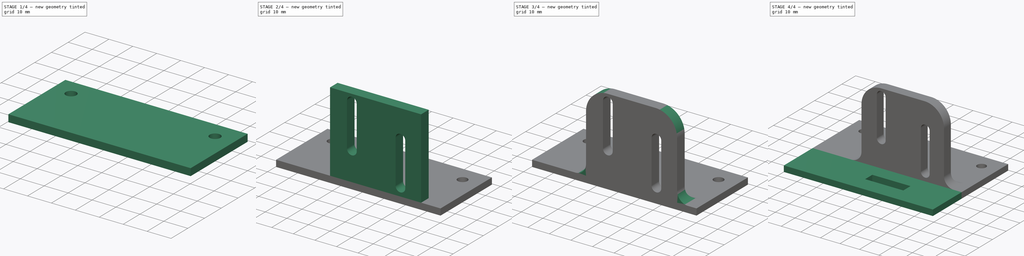
[diagram: build sequence overview — one tinted view per stage of 4, left to right]
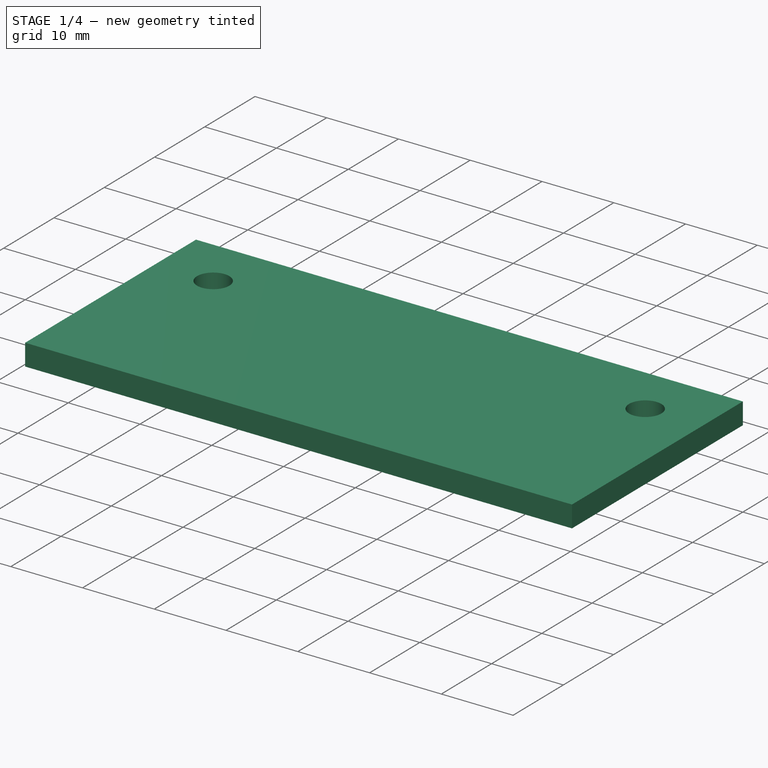
[diagram: stage 1 of 4 — iso view after this stage's code; geometry added in this stage tinted green]
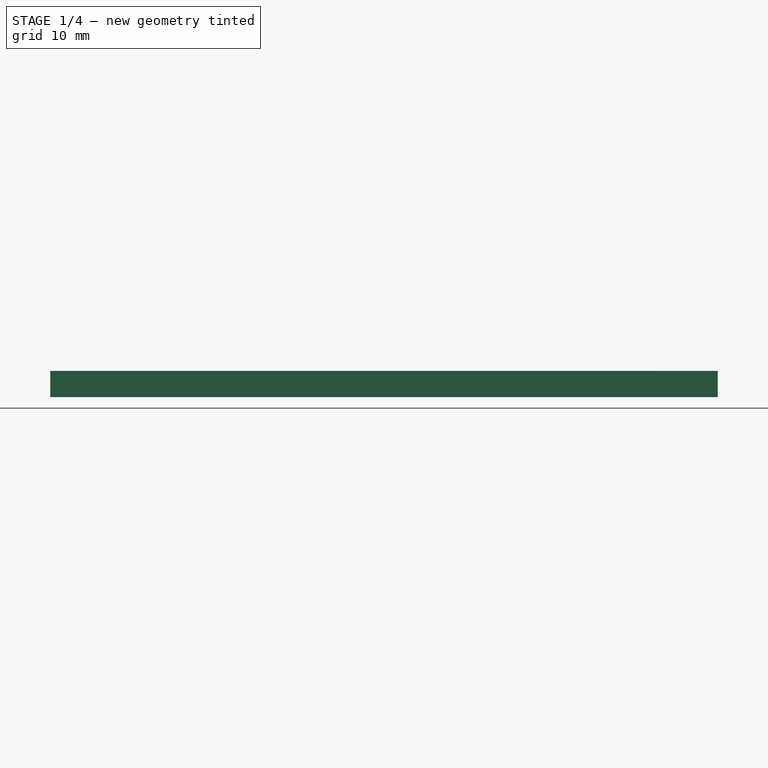
[diagram: stage 1 of 4 — front view after this stage's code; geometry added in this stage tinted green]
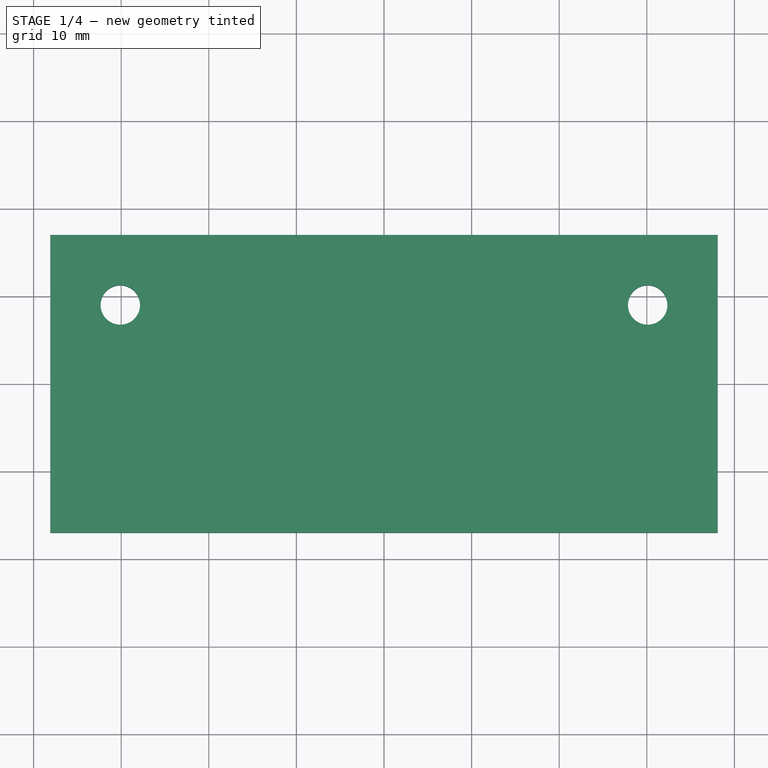
[diagram: stage 1 of 4 — top view after this stage's code; geometry added in this stage tinted green]
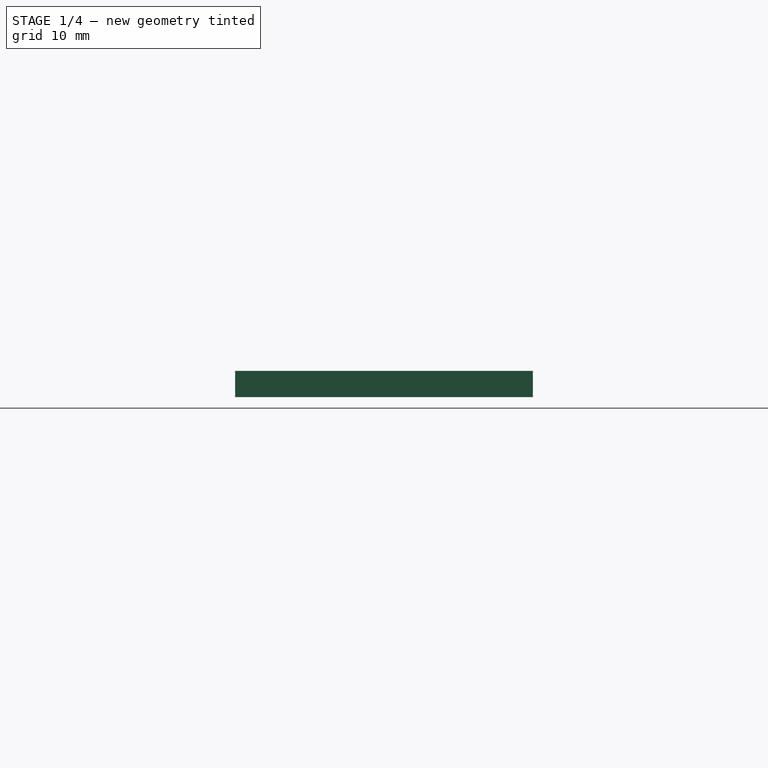
[diagram: stage 1 of 4 — right view after this stage's code; geometry added in this stage tinted green]
FCSTD DOCUMENT  (FreeCAD 0.18.3R)
Label: bracket
License: All rights reserved
LicenseURL: http://en.wikipedia.org/wiki/All_rights_reserved
objects: Sketcher::SketchObject×6, PartDesign::Pocket×4, PartDesign::Pad×3, PartDesign::Fillet×3, PartDesign::Body×1
note: 24 computed .brp shape members not serialized (recipe doc carries the construction recipe); baked Part::Feature solids carry a one-line shape summary decoded from their .brp

FEATURE [Sketcher::SketchObject] Sketch
  MapMode = 5
  Support = -> [XY_Plane]
  sketch-geometry (4):
    g0: LineSegment StartX=-38.1 StartY=17 StartZ=0 EndX=38.1 EndY=17 EndZ=0
    g1: LineSegment StartX=38.1 StartY=17 StartZ=0 EndX=38.1 EndY=-17 EndZ=0
    g2: LineSegment StartX=38.1 StartY=-17 StartZ=0 EndX=-38.1 EndY=-17 EndZ=0
    g3: LineSegment StartX=-38.1 StartY=-17 StartZ=0 EndX=-38.1 EndY=17 EndZ=0
  constraints (11):
    c: Coincident(g0,g1)
    c: Coincident(g1,g2)
    c: Coincident(g2,g3)
    c: Coincident(g3,g0)
    c: Horizontal(g0)
    c: Horizontal(g2)
    c: Vertical(g1)
    c: Vertical(g3)
    c: Symmetric(g1,g0,g-1)
    c: DistanceY(g1,g1) = 34
    c: DistanceX(g2,g2) = 76.2
FEATURE [PartDesign::Pad] Pad
  Length = 3
  Length2 = 100
  Profile = -> Sketch
  Type = 0
FEATURE [Sketcher::SketchObject] Sketch001
  ExternalGeometry = -> [Pad]
  MapMode = 5
  Placement = pos=(0,0,3) rot=(0,0,1;0rad)
  Support = -> [Pad]
  sketch-geometry (2):
    g0: Circle CenterX=-30.1 CenterY=9 CenterZ=0 NormalX=0 NormalY=0 NormalZ=1 AngleXU=0 Radius=2.25
    g1: Circle CenterX=30.1 CenterY=9 CenterZ=0 NormalX=0 NormalY=0 NormalZ=1 AngleXU=0 Radius=2.25
  constraints (5):
    c: Symmetric(g1,g0,g-2)
    c: Equal(g1,g0)
    c: Diameter(g1) = 4.5
    c: DistanceX(g1,g-3) = 8
    c: DistanceY(g1,g-3) = 8
FEATURE [PartDesign::Pocket] Pocket
  BaseFeature = -> Pad
  Length = 5
  Length2 = 100
  Profile = -> Sketch001
  Type = 1
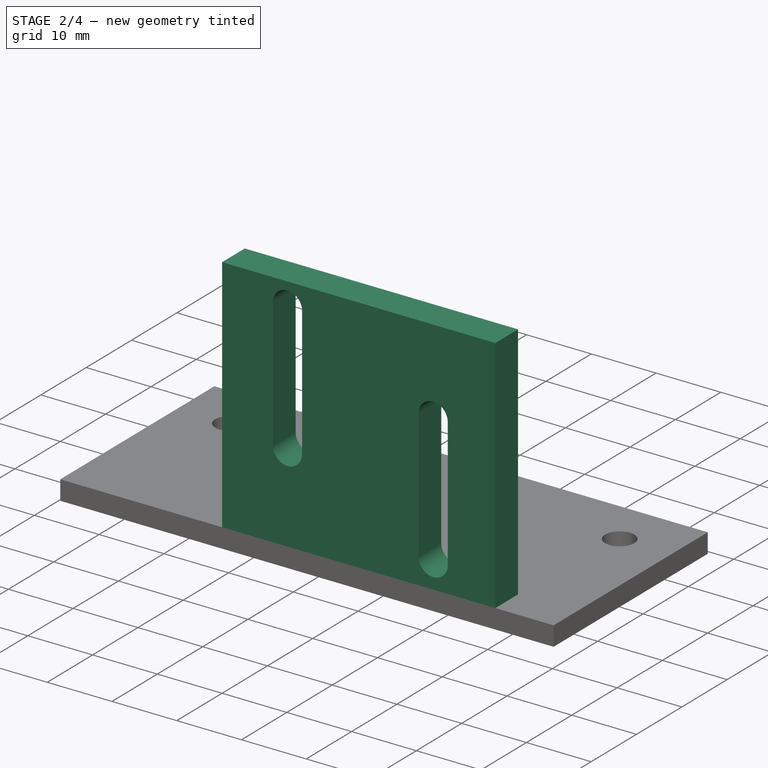
[diagram: stage 2 of 4 — iso view after this stage's code; geometry added in this stage tinted green]
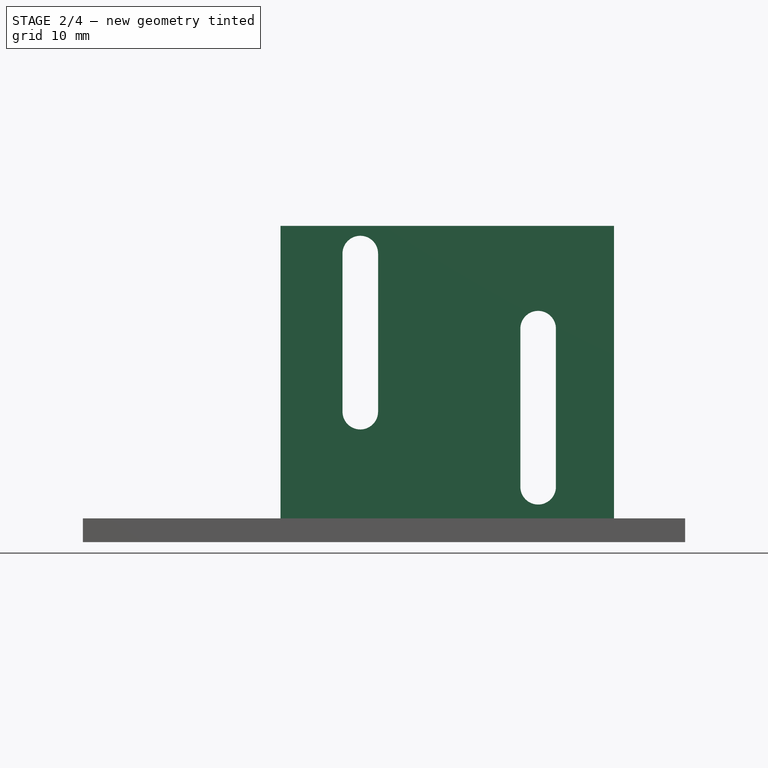
[diagram: stage 2 of 4 — front view after this stage's code; geometry added in this stage tinted green]
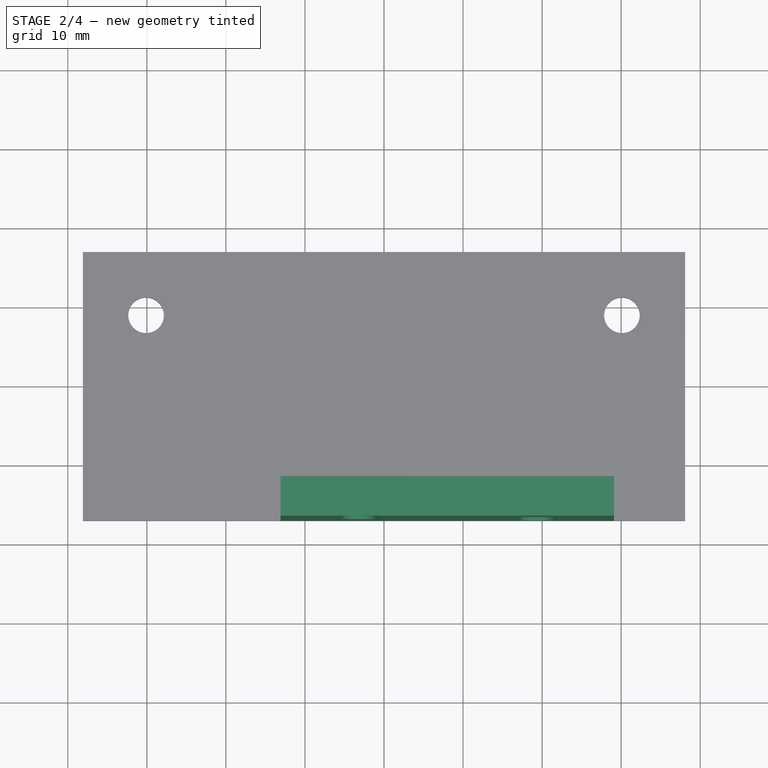
[diagram: stage 2 of 4 — top view after this stage's code; geometry added in this stage tinted green]
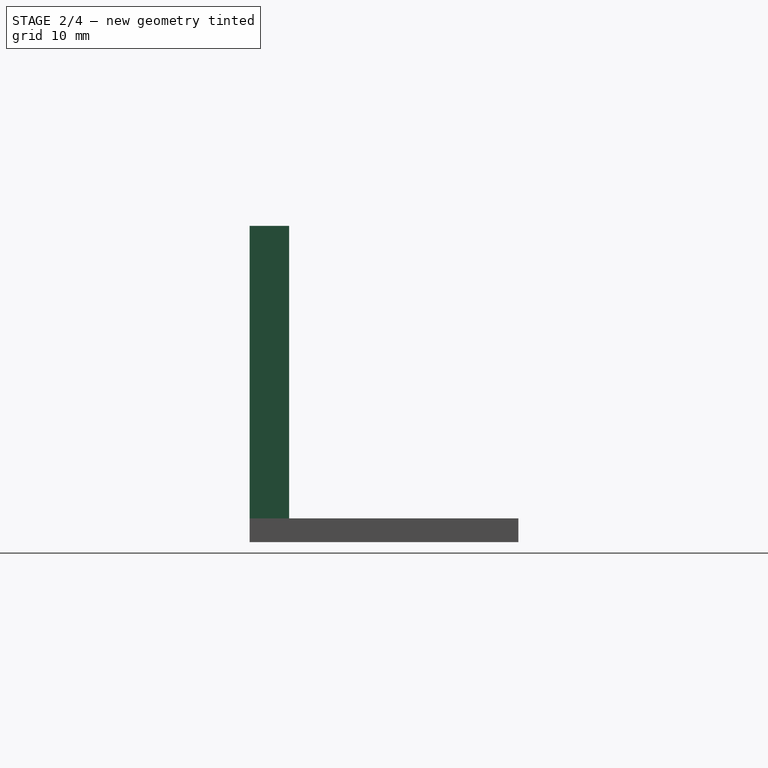
[diagram: stage 2 of 4 — right view after this stage's code; geometry added in this stage tinted green]
FEATURE [Sketcher::SketchObject] Sketch002
  ExternalGeometry = -> [Pocket]
  MapMode = 5
  Placement = pos=(0,0,3) rot=(0,0,1;0rad)
  Support = -> [Pocket]
  sketch-geometry (4):
    g0: LineSegment StartX=-38.1 StartY=-17 StartZ=0 EndX=38.1 EndY=-17 EndZ=0
    g1: LineSegment StartX=38.1 StartY=-17 StartZ=0 EndX=38.1 EndY=-12 EndZ=0
    g2: LineSegment StartX=38.1 StartY=-12 StartZ=0 EndX=-38.1 EndY=-12 EndZ=0
    g3: LineSegment StartX=-38.1 StartY=-12 StartZ=0 EndX=-38.1 EndY=-17 EndZ=0
  constraints (10):
    c: Coincident(g0,g1)
    c: Coincident(g1,g2)
    c: Coincident(g2,g3)
    c: Coincident(g3,g0)
    c: Horizontal(g2)
    c: Vertical(g1)
    c: Vertical(g3)
    c: Coincident(g0,g-3)
    c: Coincident(g0,g-3)
    c: DistanceY(g1,g1) = 5
FEATURE [PartDesign::Pad] Pad001
  BaseFeature = -> Pocket
  Length = 37
  Length2 = 100
  Profile = -> Sketch002
  Type = 0
FEATURE [Sketcher::SketchObject] Sketch003
  ExternalGeometry = -> [Pad001]
  MapMode = 5
  Placement = pos=(0,-17,0) rot=(1,0,0;1.5708rad)
  Support = -> [Pad001]
  sketch-geometry (11):
    g0: Circle [constr] CenterX=-3 CenterY=16.5 CenterZ=0 NormalX=0 NormalY=0 NormalZ=1 AngleXU=0 Radius=2.25
    g1: Circle [constr] CenterX=19.5 CenterY=7 CenterZ=0 NormalX=0 NormalY=0 NormalZ=1 AngleXU=0 Radius=2.25
    g2: GeomPoint X=0 Y=16.5 Z=0
    g3: ArcOfCircle CenterX=-3 CenterY=16.5 CenterZ=0 NormalX=0 NormalY=0 NormalZ=1 AngleXU=0 Radius=2.25 StartAngle=3.14159 EndAngle=6.28319
    g4: ArcOfCircle CenterX=-3 CenterY=36.5 CenterZ=0 NormalX=0 NormalY=0 NormalZ=1 AngleXU=0 Radius=2.25 StartAngle=1e-16 EndAngle=3.14159
    g5: LineSegment StartX=-0.75 StartY=16.5 StartZ=0 EndX=-0.75 EndY=36.5 EndZ=0
    g6: LineSegment StartX=-5.25 StartY=16.5 StartZ=0 EndX=-5.25 EndY=36.5 EndZ=0
    g7: ArcOfCircle CenterX=19.5 CenterY=7 CenterZ=0 NormalX=0 NormalY=0 NormalZ=1 AngleXU=0 Radius=2.25 StartAngle=3.14159 EndAngle=6.28319
    g8: ArcOfCircle CenterX=19.5 CenterY=27 CenterZ=0 NormalX=0 NormalY=0 NormalZ=1 AngleXU=0 Radius=2.25 StartAngle=-9e-16 EndAngle=3.14159
    g9: LineSegment StartX=21.75 StartY=7 StartZ=0 EndX=21.75 EndY=27 EndZ=0
    g10: LineSegment StartX=17.25 StartY=7 StartZ=0 EndX=17.25 EndY=27 EndZ=0
  constraints (26):
    c: Equal(g1,g0)
    c: Diameter(g0) = 4.5
    c: DistanceX(g0,g1) = 22.5
    c: DistanceY(g1,g0) = 9.5
    c: PointOnObject(g2,g-2)
    c: Horizontal(g2,g0)
    c: DistanceX(g0,g2) = 3
    c: DistanceY(g-3,g1) = 4
    c: Tangent(g3,g6) = 1.5708
    c: Tangent(g3,g5) = -1.5708
    c: Tangent(g5,g4) = -1.5708
    c: Tangent(g6,g4) = 1.5708
    c: Vertical(g5)
    c: Equal(g3,g4)
    c: Coincident(g3,g0)
    c: Equal(g3,g0)
    c: Tangent(g7,g10) = 1.5708
    c: Tangent(g7,g9) = -1.5708
    c: Tangent(g9,g8) = -1.5708
    c: Tangent(g10,g8) = 1.5708
    c: Vertical(g9)
    c: Equal(g7,g8)
    c: Coincident(g7,g1)
    c: Equal(g7,g1)
    c: DistanceY(g3,g4) = 20
    c: Equal(g6,g10)
FEATURE [PartDesign::Pocket] Pocket001
  BaseFeature = -> Pad001
  Length = 5
  Length2 = 100
  Profile = -> Sketch003
  Type = 1
FEATURE [Sketcher::SketchObject] Sketch004
  ExternalGeometry = -> [Pocket001]
  MapMode = 5
  Placement = pos=(0,-17,0) rot=(1,0,0;1.5708rad)
  Support = -> [Pocket001]
  sketch-geometry (8):
    g0: LineSegment StartX=-38.1 StartY=40 StartZ=0 EndX=-13.1 EndY=40 EndZ=0
    g1: LineSegment StartX=-13.1 StartY=40 StartZ=0 EndX=-13.1 EndY=3 EndZ=0
    g2: LineSegment StartX=-13.1 StartY=3 StartZ=0 EndX=-38.1 EndY=3 EndZ=0
    g3: LineSegment StartX=-38.1 StartY=3 StartZ=0 EndX=-38.1 EndY=40 EndZ=0
    g4: LineSegment StartX=38.1 StartY=40 StartZ=0 EndX=29.1 EndY=40 EndZ=0
    g5: LineSegment StartX=29.1 StartY=40 StartZ=0 EndX=29.1 EndY=3 EndZ=0
    g6: LineSegment StartX=29.1 StartY=3 StartZ=0 EndX=38.1 EndY=3 EndZ=0
    g7: LineSegment StartX=38.1 StartY=3 StartZ=0 EndX=38.1 EndY=40 EndZ=0
  constraints (20):
    c: Coincident(g0,g1)
    c: Coincident(g1,g2)
    c: Coincident(g2,g3)
    c: Coincident(g3,g0)
    c: Horizontal(g0)
    c: Horizontal(g2)
    c: Vertical(g1)
    c: Coincident(g0,g-4)
    c: Coincident(g2,g-3)
    c: DistanceX(g0,g0) = 25
    c: Coincident(g4,g5)
    c: Coincident(g5,g6)
    c: Coincident(g6,g7)
    c: Coincident(g7,g4)
    c: Horizontal(g4)
    c: Horizontal(g6)
    c: Vertical(g5)
    c: Coincident(g4,g-4)
    c: Coincident(g6,g-5)
    c: DistanceX(g4,g4) = 9
FEATURE [PartDesign::Pocket] Pocket002
  BaseFeature = -> Pocket001
  Length = 5
  Length2 = 100
  Profile = -> Sketch004
  Type = 1
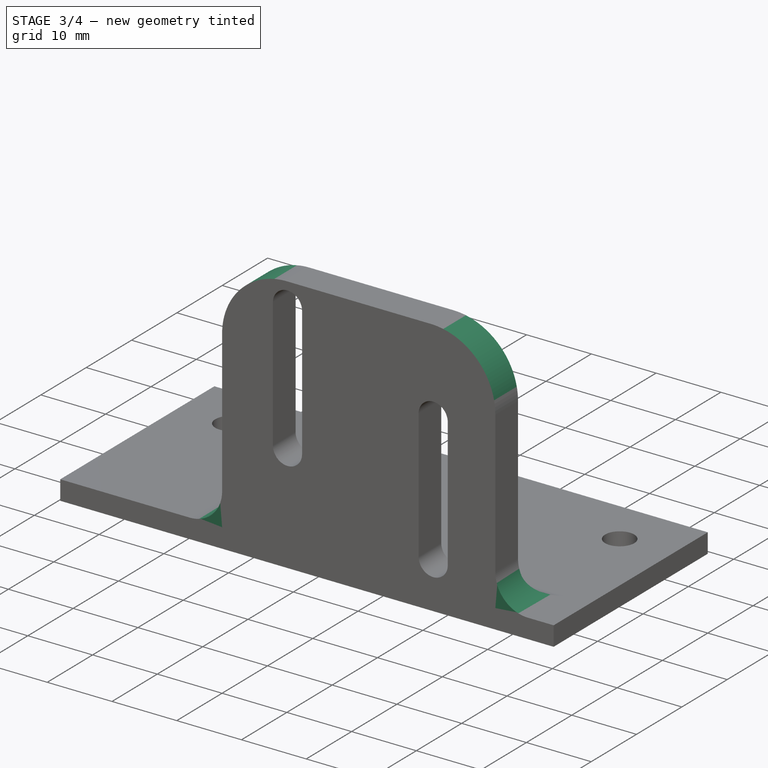
[diagram: stage 3 of 4 — iso view after this stage's code; geometry added in this stage tinted green]
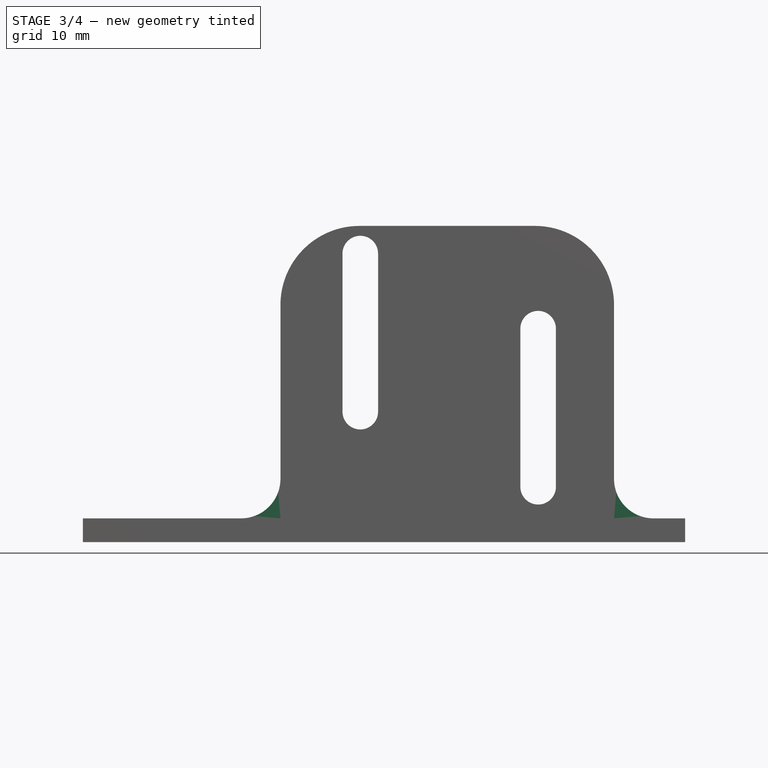
[diagram: stage 3 of 4 — front view after this stage's code; geometry added in this stage tinted green]
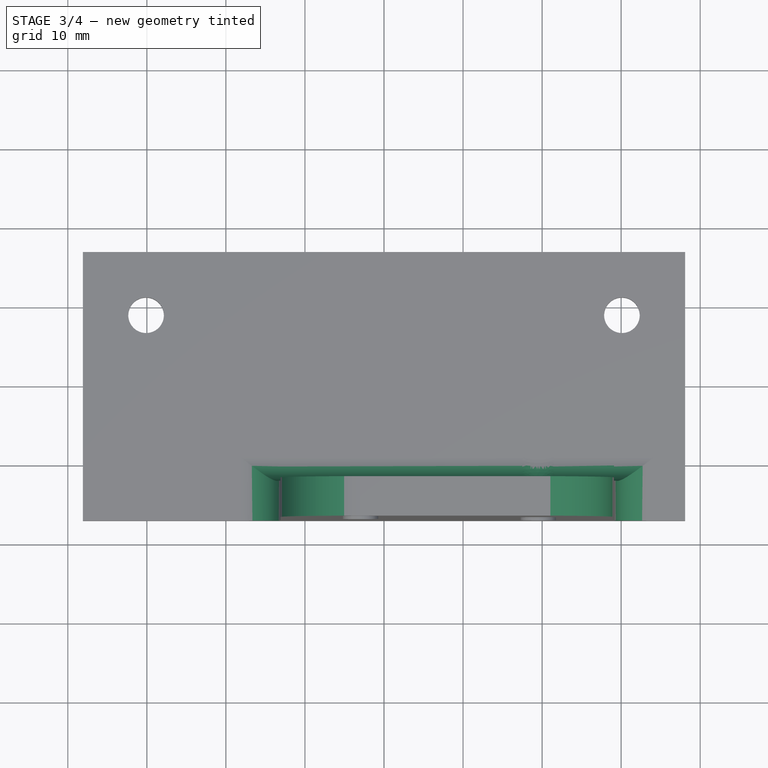
[diagram: stage 3 of 4 — top view after this stage's code; geometry added in this stage tinted green]
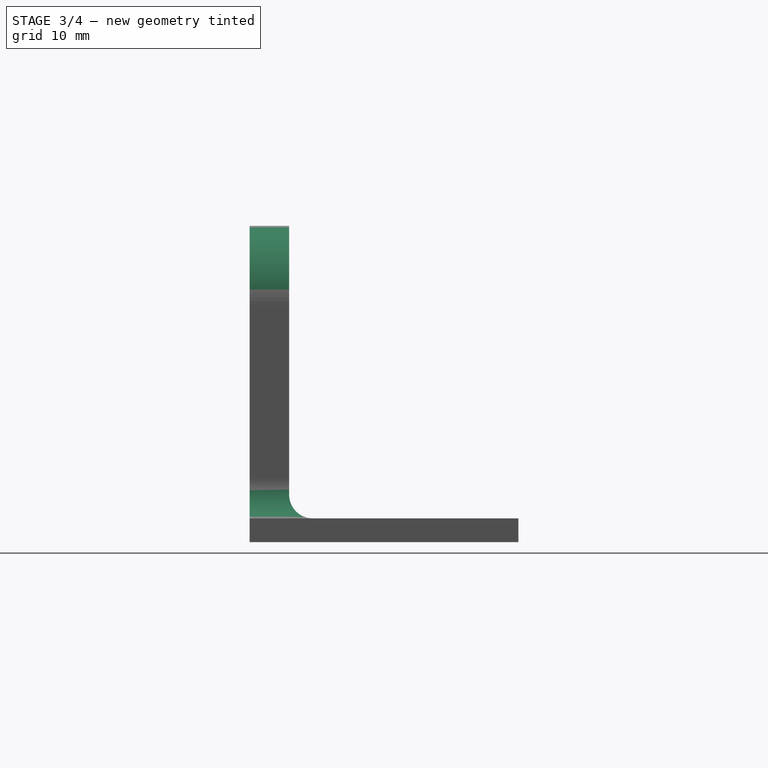
[diagram: stage 3 of 4 — right view after this stage's code; geometry added in this stage tinted green]
FEATURE [PartDesign::Fillet] Fillet
  Base = -> Pocket002 [Edge57,Edge58]
  BaseFeature = -> Pocket002
  Radius = 10
FEATURE [PartDesign::Fillet] Fillet001
  Base = -> Fillet [Edge17,Edge29]
  BaseFeature = -> Fillet
  Radius = 5
FEATURE [PartDesign::Fillet] Fillet002
  Base = -> Fillet001 [Edge4]
  BaseFeature = -> Fillet001
  Radius = 3
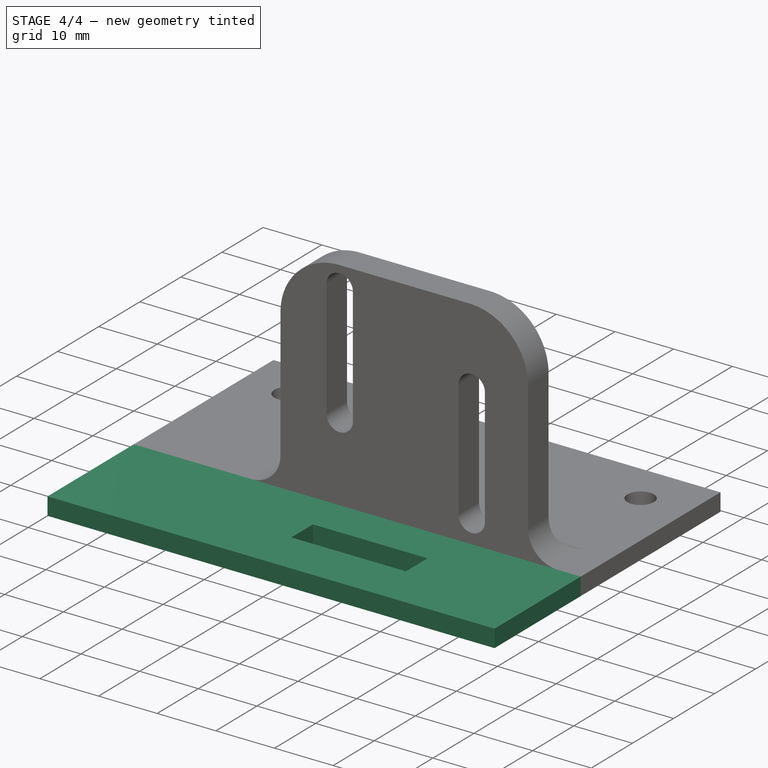
[diagram: stage 4 of 4 — iso view after this stage's code; geometry added in this stage tinted green]
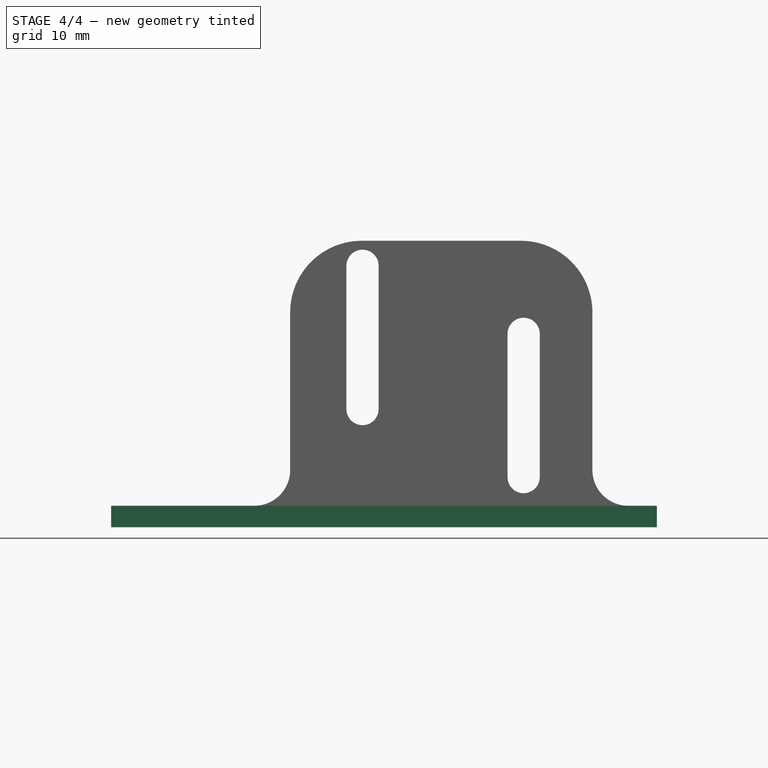
[diagram: stage 4 of 4 — front view after this stage's code; geometry added in this stage tinted green]
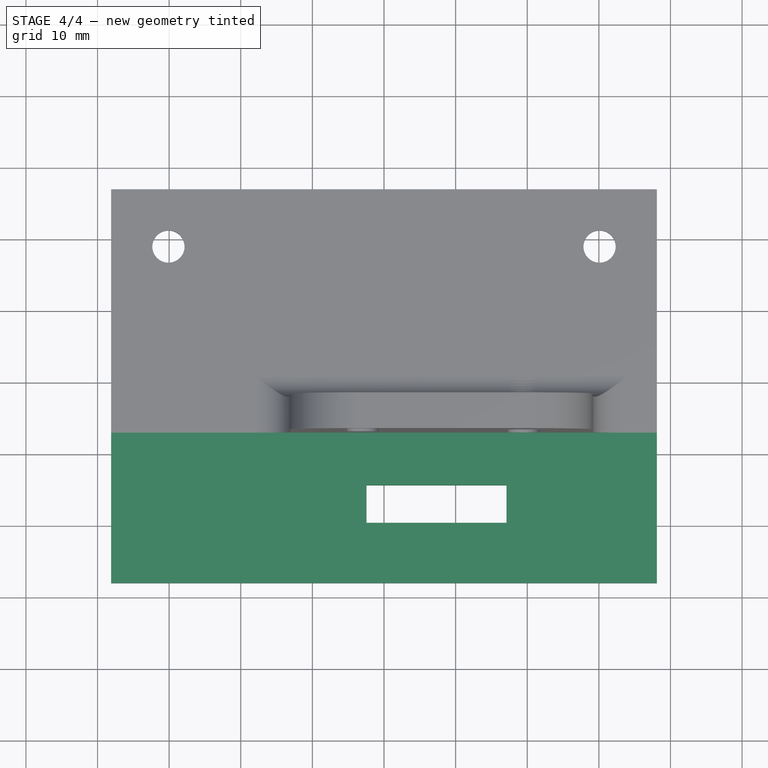
[diagram: stage 4 of 4 — top view after this stage's code; geometry added in this stage tinted green]
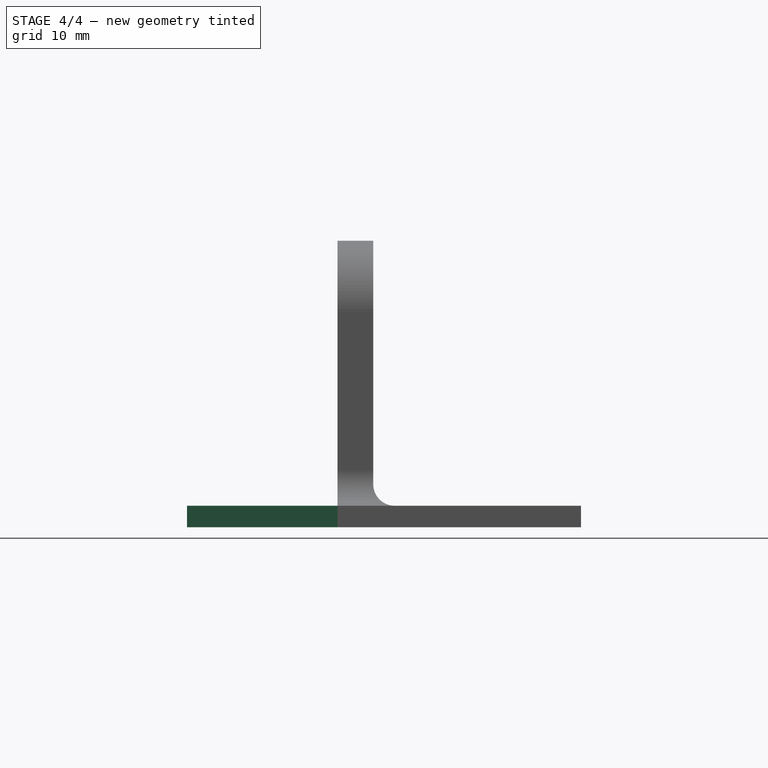
[diagram: stage 4 of 4 — right view after this stage's code; geometry added in this stage tinted green]
FEATURE [PartDesign::Pad] Pad002
  BaseFeature = -> Fillet002
  Length = 21
  Length2 = 100
  Profile = -> Fillet002 [Face31]
  Type = 0
FEATURE [Sketcher::SketchObject] Sketch005
  MapMode = 5
  Placement = pos=(0,0,3) rot=(0,0,1;0rad)
  Support = -> [Pad002]
  sketch-geometry (4):
    g0: LineSegment StartX=-2.43677 StartY=-24.3252 StartZ=0 EndX=17.1096 EndY=-24.3252 EndZ=0
    g1: LineSegment StartX=17.1096 StartY=-24.3252 StartZ=0 EndX=17.1096 EndY=-29.5799 EndZ=0
    g2: LineSegment StartX=17.1096 StartY=-29.5799 StartZ=0 EndX=-2.43677 EndY=-29.5799 EndZ=0
    g3: LineSegment StartX=-2.43677 StartY=-29.5799 StartZ=0 EndX=-2.43677 EndY=-24.3252 EndZ=0
  constraints (8):
    c: Coincident(g0,g1)
    c: Coincident(g1,g2)
    c: Coincident(g2,g3)
    c: Coincident(g3,g0)
    c: Horizontal(g0)
    c: Horizontal(g2)
    c: Vertical(g1)
    c: Vertical(g3)
FEATURE [PartDesign::Pocket] Pocket003
  BaseFeature = -> Pad002
  Length = 5
  Length2 = 100
  Profile = -> Sketch005
  Type = 1
FEATURE [PartDesign::Body] Body
  Group = -> [Sketch,Pad,Sketch001,Pocket,Sketch002,Pad001,Sketch003,Pocket001,Sketch004,Pocket002,Fillet,Fillet001,Fillet002,Pad002,Sketch005,Pocket003]
  Origin = -> Origin
  Tip = -> Pocket003
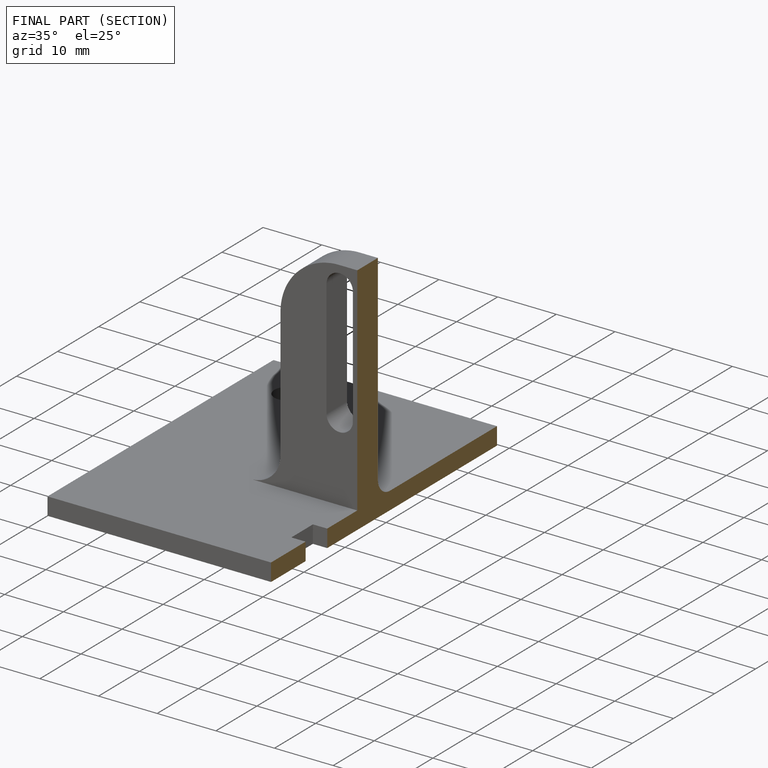
[diagram: finished part — half-section view (interior)]
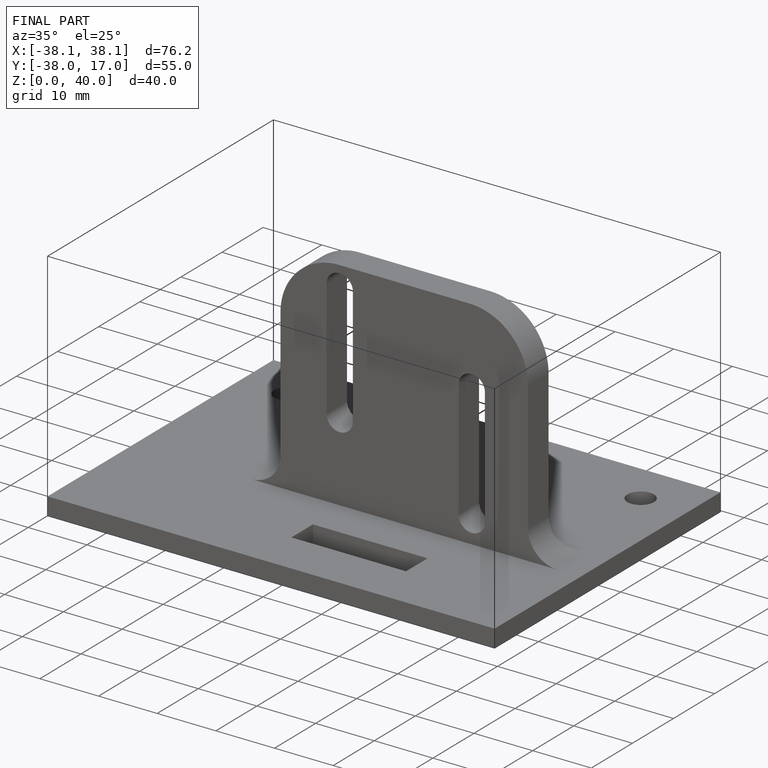
[diagram: finished part — iso view with bounding-box wireframe]
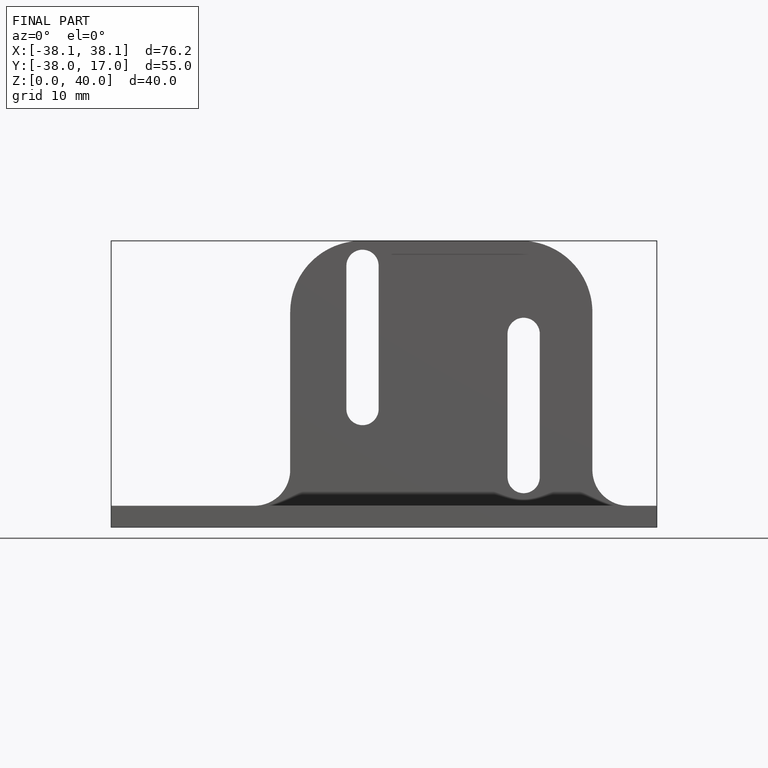
[diagram: finished part — front view with bounding-box wireframe]
